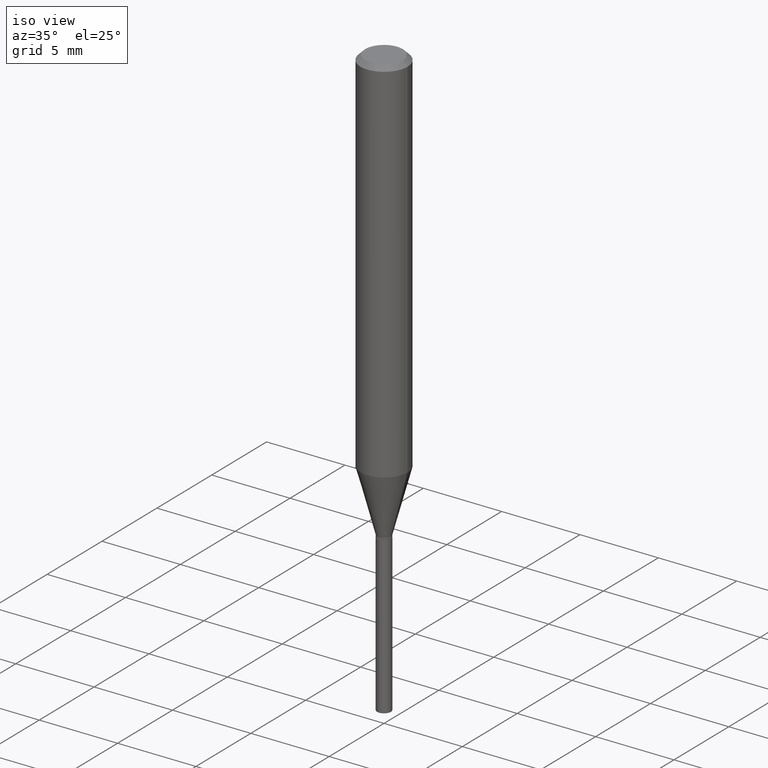
[diagram: clean part render]
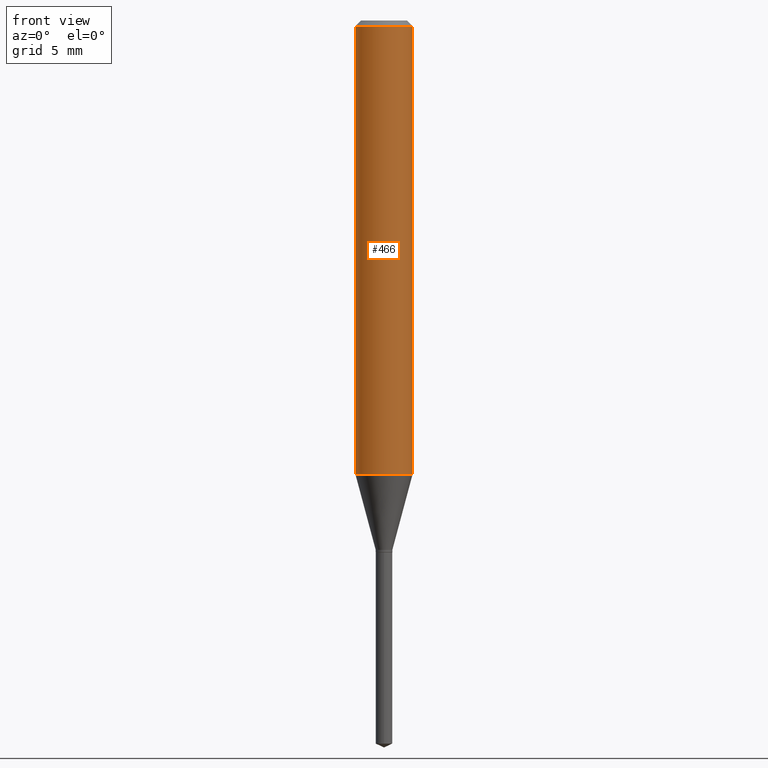
[diagram: tour spotlight — one face highlighted and labeled with its STEP entity id]
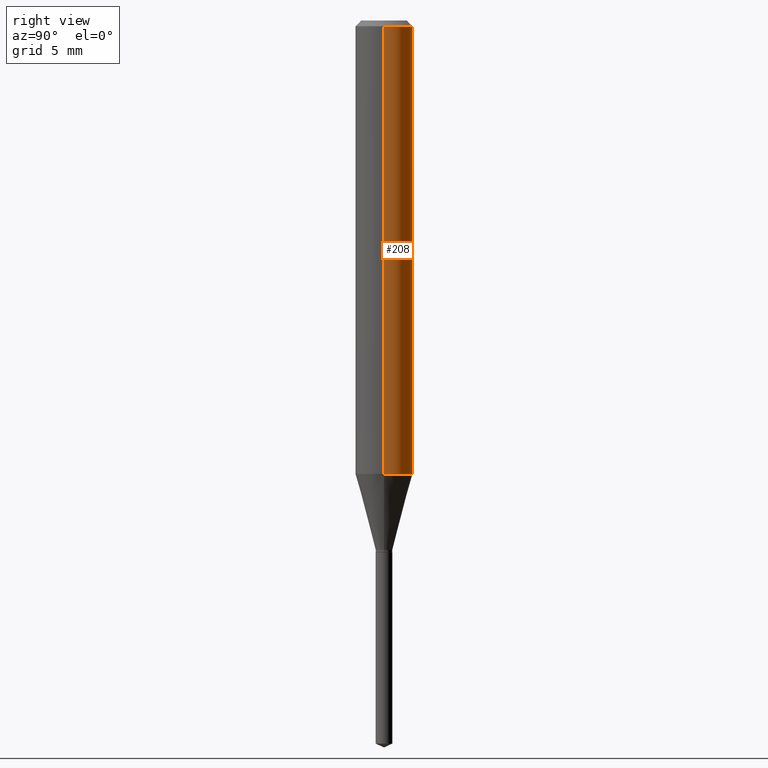
[diagram: tour spotlight — one face highlighted and labeled with its STEP entity id]
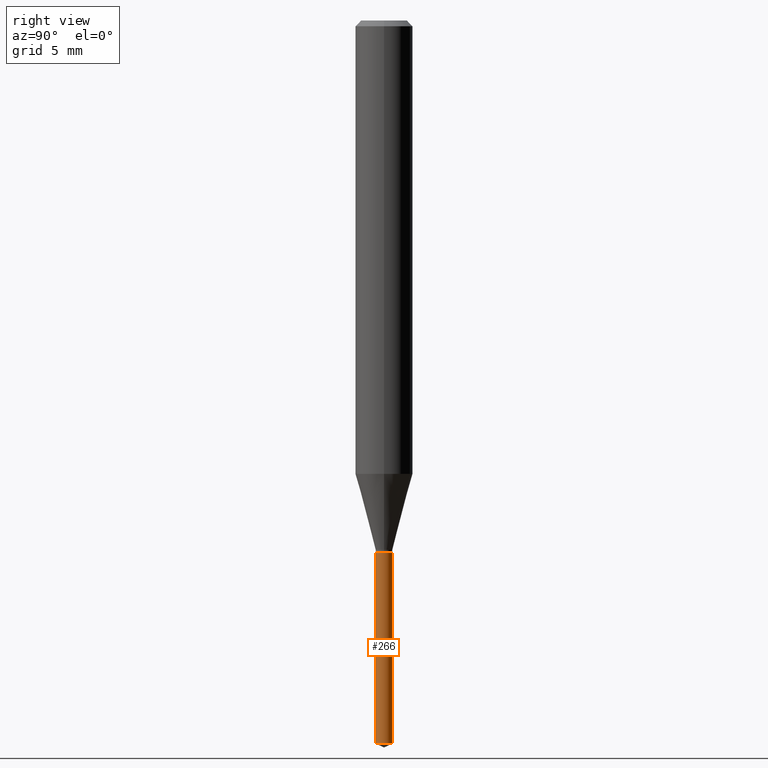
[diagram: tour spotlight — one face highlighted and labeled with its STEP entity id]
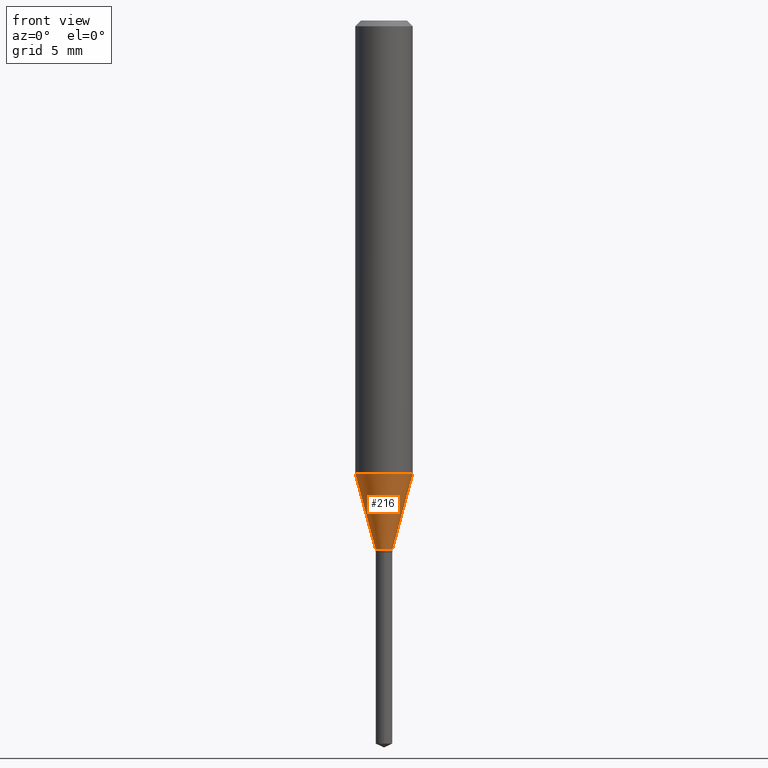
[diagram: tour spotlight — one face highlighted and labeled with its STEP entity id]
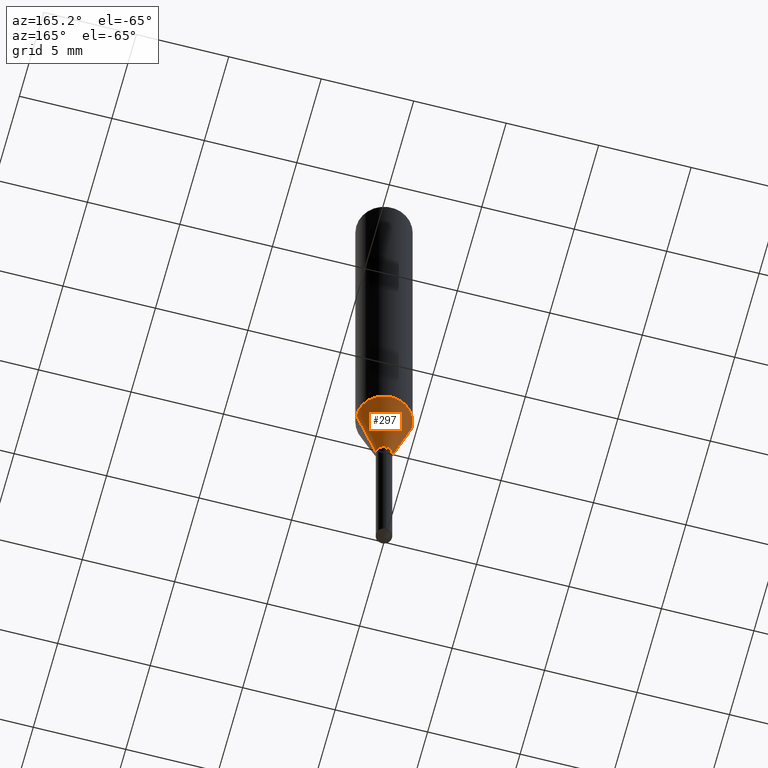
[diagram: tour spotlight — one face highlighted and labeled with its STEP entity id]
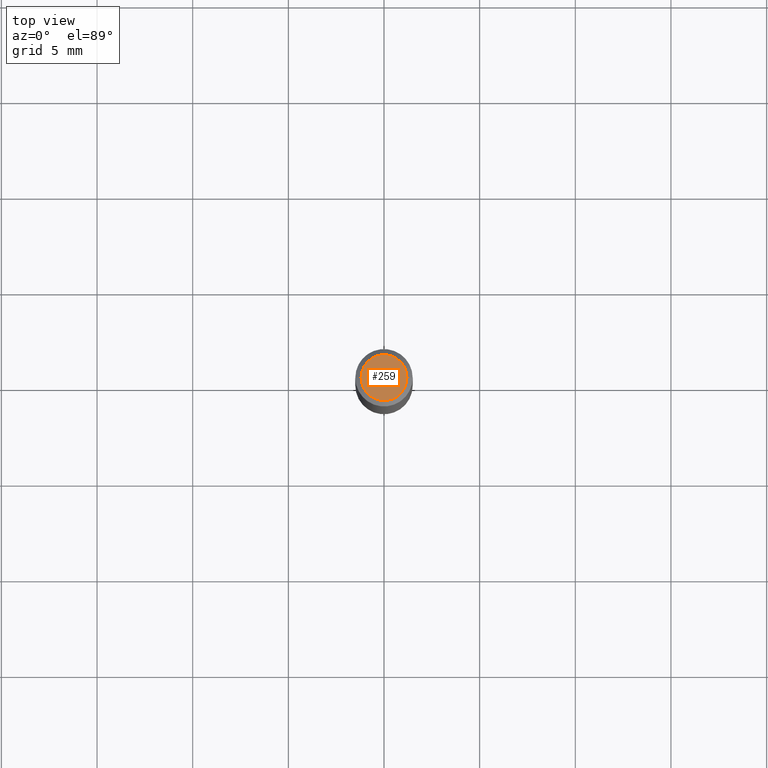
[diagram: tour spotlight — one face highlighted and labeled with its STEP entity id]
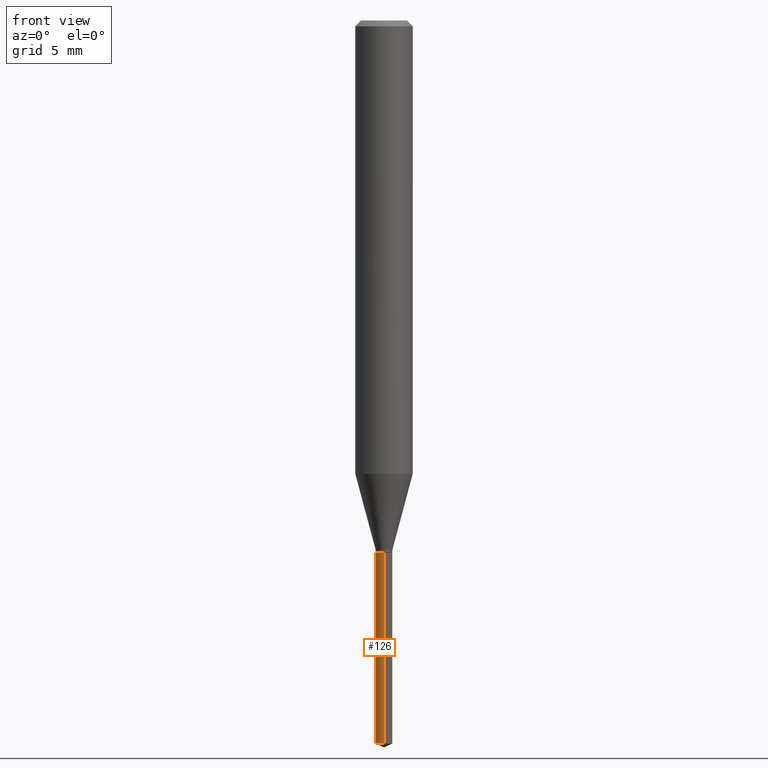
[diagram: tour spotlight — one face highlighted and labeled with its STEP entity id]
A machine part: a face-by-face anatomy tour. The part has 17 B-rep faces; the first image is the clean iso view, then the 7 largest visible faces are spotlighted one at a time (largest first), each with its STEP entity span.

Face 1 — front view, entity #466. In plain terms, the highlighted cylindrical surface (edge-blend (fillet) strip) has radius 1.4999 mm, axis along (-0, 0, 1).
Definition (entity closure, byte-faithful):
#21 = DIRECTION ( 'NONE',  ( -2.445468806185136597E-29, 3.491481338843145583E-15, 1.000000000000000000 ) ) ;
#23 = LINE ( 'NONE', #58, #78 ) ;
#40 = EDGE_CURVE ( 'NONE', #250, #118, #219, .T. ) ;
#58 = CARTESIAN_POINT ( 'NONE',  ( -0.05905000000000005383, 4.195754854663395423E-16, -2.904631170795524694E-30 ) ) ;
#68 = AXIS2_PLACEMENT_3D ( 'NONE', #451, #79, #379 ) ;
#78 = VECTOR ( 'NONE', #181, 39.37007874015748143 ) ;
#79 = DIRECTION ( 'NONE',  ( -2.445468806185136597E-29, 3.491481338843145583E-15, 1.000000000000000000 ) ) ;
#92 = FACE_OUTER_BOUND ( 'NONE', #472, .T. ) ;
#93 = VERTEX_POINT ( 'NONE', #371 ) ;
#97 = EDGE_CURVE ( 'NONE', #118, #132, #373, .T. ) ;
#102 = AXIS2_PLACEMENT_3D ( 'NONE', #393, #356, #227 ) ;
#109 = AXIS2_PLACEMENT_3D ( 'NONE', #469, #21, #278 ) ;
#118 = VERTEX_POINT ( 'NONE', #258 ) ;
#132 = VERTEX_POINT ( 'NONE', #311 ) ;
#181 = DIRECTION ( 'NONE',  ( -2.445468806185136877E-29, 3.491481338843145188E-15, 1.000000000000000000 ) ) ;
#182 = ORIENTED_EDGE ( 'NONE', *, *, #383, .F. ) ;
#219 = CIRCLE ( 'NONE', #68, 0.05905000000000010935 ) ;
#227 = DIRECTION ( 'NONE',  ( 1.000000000000000000, -6.982962677686266711E-15, 4.876176775795935793E-29 ) ) ;
#243 = CYLINDRICAL_SURFACE ( 'NONE', #102, 0.05905000000000005383 ) ;
#244 = ORIENTED_EDGE ( 'NONE', *, *, #97, .T. ) ;
#250 = VERTEX_POINT ( 'NONE', #271 ) ;
#258 = CARTESIAN_POINT ( 'NONE',  ( 0.05905000000000010935, -3.669990553717989210E-15, -0.9330270711628638747 ) ) ;
#271 = CARTESIAN_POINT ( 'NONE',  ( -0.05905000000000010935, -2.838071122134274797E-15, -0.9330270711628638747 ) ) ;
#278 = DIRECTION ( 'NONE',  ( 1.000000000000000000, -6.982962677686266711E-15, 0.000000000000000000 ) ) ;
#296 = DIRECTION ( 'NONE',  ( -2.445468806185136877E-29, 3.491481338843145188E-15, 1.000000000000000000 ) ) ;
#305 = ORIENTED_EDGE ( 'NONE', *, *, #40, .T. ) ;
#311 = CARTESIAN_POINT ( 'NONE',  ( 0.05904999999999999832, -4.535783407291118600E-16, -0.01181000000000006871 ) ) ;
#356 = DIRECTION ( 'NONE',  ( -2.445468806185136597E-29, 3.491481338843145583E-15, 1.000000000000000000 ) ) ;
#366 = ORIENTED_EDGE ( 'NONE', *, *, #367, .F. ) ;
#367 = EDGE_CURVE ( 'NONE', #250, #93, #23, .T. ) ;
#371 = CARTESIAN_POINT ( 'NONE',  ( -0.05904999999999999832, -1.229865015639836319E-15, -0.01181000000000006871 ) ) ;
#373 = LINE ( 'NONE', #481, #476 ) ;
#379 = DIRECTION ( 'NONE',  ( 1.000000000000000000, -6.982962677686267499E-15, 0.000000000000000000 ) ) ;
#383 = EDGE_CURVE ( 'NONE', #93, #132, #468, .T. ) ;
#393 = CARTESIAN_POINT ( 'NONE',  ( 0.000000000000000000, 0.000000000000000000, 0.000000000000000000 ) ) ;
#451 = CARTESIAN_POINT ( 'NONE',  ( 2.281688597855063400E-29, -3.257646607600614684E-15, -0.9330270711628638747 ) ) ;
#466 = ADVANCED_FACE ( 'NONE', ( #92 ), #243, .T. ) ;
#468 = CIRCLE ( 'NONE', #109, 0.05904999999999999832 ) ;
#469 = CARTESIAN_POINT ( 'NONE',  ( 2.888098660104663328E-31, -4.123439461173779030E-17, -0.01181000000000006871 ) ) ;
#472 = EDGE_LOOP ( 'NONE', ( #366, #305, #244, #182 ) ) ;
#476 = VECTOR ( 'NONE', #296, 39.37007874015748143 ) ;
#481 = CARTESIAN_POINT ( 'NONE',  ( 0.05905000000000005383, -4.123439461173744271E-16, 2.879382386107502672E-30 ) ) ;

Face 2 — right view, entity #208. In plain terms, the highlighted cylindrical surface (edge-blend (fillet) strip) has radius 1.4999 mm, axis along (-0, 0, 1).
Definition (entity closure, byte-faithful):
#7 = CYLINDRICAL_SURFACE ( 'NONE', #428, 0.05905000000000005383 ) ;
#23 = LINE ( 'NONE', #58, #78 ) ;
#42 = CARTESIAN_POINT ( 'NONE',  ( 2.888098660104663328E-31, -4.123439461173779030E-17, -0.01181000000000006871 ) ) ;
#49 = AXIS2_PLACEMENT_3D ( 'NONE', #42, #348, #456 ) ;
#54 = DIRECTION ( 'NONE',  ( 1.000000000000000000, -6.982962677686267499E-15, 0.000000000000000000 ) ) ;
#57 = ORIENTED_EDGE ( 'NONE', *, *, #367, .T. ) ;
#58 = CARTESIAN_POINT ( 'NONE',  ( -0.05905000000000005383, 4.195754854663395423E-16, -2.904631170795524694E-30 ) ) ;
#78 = VECTOR ( 'NONE', #181, 39.37007874015748143 ) ;
#80 = DIRECTION ( 'NONE',  ( -2.445468806185136597E-29, 3.491481338843145583E-15, 1.000000000000000000 ) ) ;
#84 = FACE_OUTER_BOUND ( 'NONE', #294, .T. ) ;
#85 = CARTESIAN_POINT ( 'NONE',  ( 0.000000000000000000, 0.000000000000000000, 0.000000000000000000 ) ) ;
#93 = VERTEX_POINT ( 'NONE', #371 ) ;
#97 = EDGE_CURVE ( 'NONE', #118, #132, #373, .T. ) ;
#118 = VERTEX_POINT ( 'NONE', #258 ) ;
#132 = VERTEX_POINT ( 'NONE', #311 ) ;
#180 = EDGE_CURVE ( 'NONE', #132, #93, #211, .T. ) ;
#181 = DIRECTION ( 'NONE',  ( -2.445468806185136877E-29, 3.491481338843145188E-15, 1.000000000000000000 ) ) ;
#208 = ADVANCED_FACE ( 'NONE', ( #84 ), #7, .T. ) ;
#211 = CIRCLE ( 'NONE', #49, 0.05904999999999999832 ) ;
#242 = CARTESIAN_POINT ( 'NONE',  ( 2.281688597855063400E-29, -3.257646607600614684E-15, -0.9330270711628638747 ) ) ;
#250 = VERTEX_POINT ( 'NONE', #271 ) ;
#258 = CARTESIAN_POINT ( 'NONE',  ( 0.05905000000000010935, -3.669990553717989210E-15, -0.9330270711628638747 ) ) ;
#261 = ORIENTED_EDGE ( 'NONE', *, *, #180, .F. ) ;
#271 = CARTESIAN_POINT ( 'NONE',  ( -0.05905000000000010935, -2.838071122134274797E-15, -0.9330270711628638747 ) ) ;
#275 = DIRECTION ( 'NONE',  ( 1.000000000000000000, -6.982962677686266711E-15, 4.876176775795935793E-29 ) ) ;
#294 = EDGE_LOOP ( 'NONE', ( #328, #57, #261, #390 ) ) ;
#296 = DIRECTION ( 'NONE',  ( -2.445468806185136877E-29, 3.491481338843145188E-15, 1.000000000000000000 ) ) ;
#311 = CARTESIAN_POINT ( 'NONE',  ( 0.05904999999999999832, -4.535783407291118600E-16, -0.01181000000000006871 ) ) ;
#328 = ORIENTED_EDGE ( 'NONE', *, *, #411, .T. ) ;
#348 = DIRECTION ( 'NONE',  ( -2.445468806185136597E-29, 3.491481338843145583E-15, 1.000000000000000000 ) ) ;
#367 = EDGE_CURVE ( 'NONE', #250, #93, #23, .T. ) ;
#371 = CARTESIAN_POINT ( 'NONE',  ( -0.05904999999999999832, -1.229865015639836319E-15, -0.01181000000000006871 ) ) ;
#373 = LINE ( 'NONE', #481, #476 ) ;
#390 = ORIENTED_EDGE ( 'NONE', *, *, #97, .F. ) ;
#391 = CIRCLE ( 'NONE', #461, 0.05905000000000010935 ) ;
#411 = EDGE_CURVE ( 'NONE', #118, #250, #391, .T. ) ;
#428 = AXIS2_PLACEMENT_3D ( 'NONE', #85, #80, #275 ) ;
#456 = DIRECTION ( 'NONE',  ( 1.000000000000000000, -6.982962677686266711E-15, 0.000000000000000000 ) ) ;
#461 = AXIS2_PLACEMENT_3D ( 'NONE', #242, #474, #54 ) ;
#474 = DIRECTION ( 'NONE',  ( -2.445468806185136597E-29, 3.491481338843145583E-15, 1.000000000000000000 ) ) ;
#476 = VECTOR ( 'NONE', #296, 39.37007874015748143 ) ;
#481 = CARTESIAN_POINT ( 'NONE',  ( 0.05905000000000005383, -4.123439461173744271E-16, 2.879382386107502672E-30 ) ) ;

Face 3 — right view, entity #266. In plain terms, the highlighted cylindrical surface (edge-blend (fillet) strip) has radius 0.4356 mm, axis along (-0, 0, 1).
Definition (entity closure, byte-faithful):
#26 = CIRCLE ( 'NONE', #140, 0.01714999999999999858 ) ;
#56 = LINE ( 'NONE', #128, #290 ) ;
#87 = DIRECTION ( 'NONE',  ( -6.982962677686266711E-15, -1.000000000000000000, 0.000000000000000000 ) ) ;
#101 = ORIENTED_EDGE ( 'NONE', *, *, #484, .T. ) ;
#108 = CARTESIAN_POINT ( 'NONE',  ( -1.197578099222926869E-16, -0.01715000000000382191, -1.094499999999999806 ) ) ;
#114 = EDGE_CURVE ( 'NONE', #153, #177, #443, .T. ) ;
#127 = DIRECTION ( 'NONE',  ( -6.982962677686266711E-15, -1.000000000000000000, 0.000000000000000000 ) ) ;
#128 = CARTESIAN_POINT ( 'NONE',  ( 1.218580791828839191E-16, 0.01714999999999617525, -1.094499999999999806 ) ) ;
#135 = EDGE_CURVE ( 'NONE', #177, #241, #195, .T. ) ;
#139 = AXIS2_PLACEMENT_3D ( 'NONE', #270, #316, #87 ) ;
#140 = AXIS2_PLACEMENT_3D ( 'NONE', #415, #380, #488 ) ;
#141 = ORIENTED_EDGE ( 'NONE', *, *, #135, .F. ) ;
#153 = VERTEX_POINT ( 'NONE', #464 ) ;
#169 = DIRECTION ( 'NONE',  ( -2.445470214571802396E-29, 3.491479321953280158E-15, 1.000000000000000000 ) ) ;
#177 = VERTEX_POINT ( 'NONE', #460 ) ;
#195 = CIRCLE ( 'NONE', #139, 0.01714999999999999858 ) ;
#238 = CARTESIAN_POINT ( 'NONE',  ( 1.218580791828936073E-16, 0.01714999999999617525, -1.094499999999999806 ) ) ;
#241 = VERTEX_POINT ( 'NONE', #238 ) ;
#246 = ORIENTED_EDGE ( 'NONE', *, *, #340, .T. ) ;
#266 = ADVANCED_FACE ( 'NONE', ( #347 ), #421, .T. ) ;
#270 = CARTESIAN_POINT ( 'NONE',  ( 2.676565608369631794E-29, -3.821426325363822773E-15, -1.094499999999999806 ) ) ;
#286 = CARTESIAN_POINT ( 'NONE',  ( 1.218580791828935333E-16, 0.01714999999999479788, -1.488102823662641683 ) ) ;
#290 = VECTOR ( 'NONE', #169, 39.37007874015748143 ) ;
#313 = VECTOR ( 'NONE', #446, 39.37007874015748143 ) ;
#316 = DIRECTION ( 'NONE',  ( -2.445470214571802116E-29, 3.491479321953280158E-15, 1.000000000000000000 ) ) ;
#340 = EDGE_CURVE ( 'NONE', #397, #241, #56, .T. ) ;
#347 = FACE_OUTER_BOUND ( 'NONE', #400, .T. ) ;
#350 = DIRECTION ( 'NONE',  ( -2.445470214571802116E-29, 3.491479321953280158E-15, 1.000000000000000000 ) ) ;
#380 = DIRECTION ( 'NONE',  ( -2.445470214571802116E-29, 3.491479321953280158E-15, 1.000000000000000000 ) ) ;
#385 = CARTESIAN_POINT ( 'NONE',  ( 2.676565608369631794E-29, -3.821426325363822773E-15, -1.094499999999999806 ) ) ;
#397 = VERTEX_POINT ( 'NONE', #286 ) ;
#400 = EDGE_LOOP ( 'NONE', ( #101, #246, #141, #418 ) ) ;
#414 = AXIS2_PLACEMENT_3D ( 'NONE', #385, #350, #127 ) ;
#415 = CARTESIAN_POINT ( 'NONE',  ( 3.639109590007979236E-29, -5.195682445244359530E-15, -1.488102823662641683 ) ) ;
#418 = ORIENTED_EDGE ( 'NONE', *, *, #114, .F. ) ;
#421 = CYLINDRICAL_SURFACE ( 'NONE', #414, 0.01714999999999999858 ) ;
#443 = LINE ( 'NONE', #108, #313 ) ;
#446 = DIRECTION ( 'NONE',  ( -2.445470214571802396E-29, 3.491479321953280158E-15, 1.000000000000000000 ) ) ;
#460 = CARTESIAN_POINT ( 'NONE',  ( -1.197578099222926869E-16, -0.01715000000000382191, -1.094499999999999806 ) ) ;
#464 = CARTESIAN_POINT ( 'NONE',  ( -1.197578099222830234E-16, -0.01715000000000518887, -1.488102823662641683 ) ) ;
#484 = EDGE_CURVE ( 'NONE', #153, #397, #26, .T. ) ;
#488 = DIRECTION ( 'NONE',  ( -6.982962677686266711E-15, -1.000000000000000000, 0.000000000000000000 ) ) ;

Face 4 — front view, entity #216. In plain terms, the highlighted conical surface has half-angle 15 deg.
Definition (entity closure, byte-faithful):
#9 = VECTOR ( 'NONE', #236, 39.37007874015747433 ) ;
#11 = DIRECTION ( 'NONE',  ( 1.000000000000000000, -6.982962677686279332E-15, 0.000000000000000000 ) ) ;
#12 = CARTESIAN_POINT ( 'NONE',  ( -0.01714999999999999858, -3.689792098432204393E-15, -1.089399999999999924 ) ) ;
#18 = ORIENTED_EDGE ( 'NONE', *, *, #30, .F. ) ;
#30 = EDGE_CURVE ( 'NONE', #283, #250, #184, .T. ) ;
#33 = DIRECTION ( 'NONE',  ( 1.000000000000000000, -6.982962677686279332E-15, 0.000000000000000000 ) ) ;
#37 = CARTESIAN_POINT ( 'NONE',  ( 2.664093717458087237E-29, -3.803619770535721859E-15, -1.089399999999999924 ) ) ;
#40 = EDGE_CURVE ( 'NONE', #250, #118, #219, .T. ) ;
#52 = VERTEX_POINT ( 'NONE', #147 ) ;
#68 = AXIS2_PLACEMENT_3D ( 'NONE', #451, #79, #379 ) ;
#72 = ORIENTED_EDGE ( 'NONE', *, *, #490, .T. ) ;
#79 = DIRECTION ( 'NONE',  ( -2.445468806185136597E-29, 3.491481338843145583E-15, 1.000000000000000000 ) ) ;
#81 = FACE_OUTER_BOUND ( 'NONE', #408, .T. ) ;
#83 = CONICAL_SURFACE ( 'NONE', #343, 0.01714999999999999858, 0.2617993877991500740 ) ;
#89 = VECTOR ( 'NONE', #336, 39.37007874015747433 ) ;
#118 = VERTEX_POINT ( 'NONE', #258 ) ;
#147 = CARTESIAN_POINT ( 'NONE',  ( 0.01714999999999999858, -3.923377580458041737E-15, -1.089399999999999924 ) ) ;
#162 = DIRECTION ( 'NONE',  ( -2.445468806185136597E-29, 3.491481338843145583E-15, 1.000000000000000000 ) ) ;
#163 = ORIENTED_EDGE ( 'NONE', *, *, #237, .T. ) ;
#184 = LINE ( 'NONE', #268, #89 ) ;
#199 = CARTESIAN_POINT ( 'NONE',  ( 2.664093717458087237E-29, -3.803619770535721859E-15, -1.089399999999999924 ) ) ;
#201 = CARTESIAN_POINT ( 'NONE',  ( 0.01714999999999999858, -3.923377580458041737E-15, -1.089399999999999924 ) ) ;
#204 = CIRCLE ( 'NONE', #345, 0.01714999999999999858 ) ;
#216 = ADVANCED_FACE ( 'NONE', ( #81 ), #83, .T. ) ;
#219 = CIRCLE ( 'NONE', #68, 0.05905000000000010935 ) ;
#236 = DIRECTION ( 'NONE',  ( 0.2588190451025213501, 1.565188264969621968E-15, 0.9659258262890682012 ) ) ;
#237 = EDGE_CURVE ( 'NONE', #52, #118, #318, .T. ) ;
#250 = VERTEX_POINT ( 'NONE', #271 ) ;
#258 = CARTESIAN_POINT ( 'NONE',  ( 0.05905000000000010935, -3.669990553717989210E-15, -0.9330270711628638747 ) ) ;
#268 = CARTESIAN_POINT ( 'NONE',  ( -0.01714999999999999858, -3.681761691352864687E-15, -1.089399999999999924 ) ) ;
#271 = CARTESIAN_POINT ( 'NONE',  ( -0.05905000000000010935, -2.838071122134274797E-15, -0.9330270711628638747 ) ) ;
#283 = VERTEX_POINT ( 'NONE', #12 ) ;
#298 = DIRECTION ( 'NONE',  ( -2.445468806185136597E-29, 3.491481338843145583E-15, 1.000000000000000000 ) ) ;
#318 = LINE ( 'NONE', #201, #9 ) ;
#336 = DIRECTION ( 'NONE',  ( -0.2588190451025213501, 5.211531920934551042E-15, 0.9659258262890682012 ) ) ;
#343 = AXIS2_PLACEMENT_3D ( 'NONE', #199, #162, #11 ) ;
#345 = AXIS2_PLACEMENT_3D ( 'NONE', #37, #298, #33 ) ;
#379 = DIRECTION ( 'NONE',  ( 1.000000000000000000, -6.982962677686267499E-15, 0.000000000000000000 ) ) ;
#408 = EDGE_LOOP ( 'NONE', ( #18, #72, #163, #475 ) ) ;
#451 = CARTESIAN_POINT ( 'NONE',  ( 2.281688597855063400E-29, -3.257646607600614684E-15, -0.9330270711628638747 ) ) ;
#475 = ORIENTED_EDGE ( 'NONE', *, *, #40, .F. ) ;
#490 = EDGE_CURVE ( 'NONE', #283, #52, #204, .T. ) ;

Face 5 — auxiliary view, entity #297. In plain terms, the highlighted conical surface has half-angle 15 deg.
Definition (entity closure, byte-faithful):
#3 = CONICAL_SURFACE ( 'NONE', #69, 0.01714999999999999858, 0.2617993877991500740 ) ;
#9 = VECTOR ( 'NONE', #236, 39.37007874015747433 ) ;
#12 = CARTESIAN_POINT ( 'NONE',  ( -0.01714999999999999858, -3.689792098432204393E-15, -1.089399999999999924 ) ) ;
#30 = EDGE_CURVE ( 'NONE', #283, #250, #184, .T. ) ;
#31 = DIRECTION ( 'NONE',  ( -2.445468806185136597E-29, 3.491481338843145583E-15, 1.000000000000000000 ) ) ;
#52 = VERTEX_POINT ( 'NONE', #147 ) ;
#54 = DIRECTION ( 'NONE',  ( 1.000000000000000000, -6.982962677686267499E-15, 0.000000000000000000 ) ) ;
#69 = AXIS2_PLACEMENT_3D ( 'NONE', #176, #471, #104 ) ;
#89 = VECTOR ( 'NONE', #336, 39.37007874015747433 ) ;
#104 = DIRECTION ( 'NONE',  ( 1.000000000000000000, -6.982962677686279332E-15, 0.000000000000000000 ) ) ;
#118 = VERTEX_POINT ( 'NONE', #258 ) ;
#144 = ORIENTED_EDGE ( 'NONE', *, *, #237, .F. ) ;
#147 = CARTESIAN_POINT ( 'NONE',  ( 0.01714999999999999858, -3.923377580458041737E-15, -1.089399999999999924 ) ) ;
#165 = CIRCLE ( 'NONE', #445, 0.01714999999999999858 ) ;
#176 = CARTESIAN_POINT ( 'NONE',  ( 2.664093717458087237E-29, -3.803619770535721859E-15, -1.089399999999999924 ) ) ;
#184 = LINE ( 'NONE', #268, #89 ) ;
#201 = CARTESIAN_POINT ( 'NONE',  ( 0.01714999999999999858, -3.923377580458041737E-15, -1.089399999999999924 ) ) ;
#236 = DIRECTION ( 'NONE',  ( 0.2588190451025213501, 1.565188264969621968E-15, 0.9659258262890682012 ) ) ;
#237 = EDGE_CURVE ( 'NONE', #52, #118, #318, .T. ) ;
#242 = CARTESIAN_POINT ( 'NONE',  ( 2.281688597855063400E-29, -3.257646607600614684E-15, -0.9330270711628638747 ) ) ;
#250 = VERTEX_POINT ( 'NONE', #271 ) ;
#258 = CARTESIAN_POINT ( 'NONE',  ( 0.05905000000000010935, -3.669990553717989210E-15, -0.9330270711628638747 ) ) ;
#268 = CARTESIAN_POINT ( 'NONE',  ( -0.01714999999999999858, -3.681761691352864687E-15, -1.089399999999999924 ) ) ;
#269 = ORIENTED_EDGE ( 'NONE', *, *, #473, .T. ) ;
#271 = CARTESIAN_POINT ( 'NONE',  ( -0.05905000000000010935, -2.838071122134274797E-15, -0.9330270711628638747 ) ) ;
#283 = VERTEX_POINT ( 'NONE', #12 ) ;
#297 = ADVANCED_FACE ( 'NONE', ( #438 ), #3, .T. ) ;
#318 = LINE ( 'NONE', #201, #9 ) ;
#336 = DIRECTION ( 'NONE',  ( -0.2588190451025213501, 5.211531920934551042E-15, 0.9659258262890682012 ) ) ;
#370 = DIRECTION ( 'NONE',  ( 1.000000000000000000, -6.982962677686279332E-15, 0.000000000000000000 ) ) ;
#391 = CIRCLE ( 'NONE', #461, 0.05905000000000010935 ) ;
#394 = EDGE_LOOP ( 'NONE', ( #269, #430, #441, #144 ) ) ;
#411 = EDGE_CURVE ( 'NONE', #118, #250, #391, .T. ) ;
#430 = ORIENTED_EDGE ( 'NONE', *, *, #30, .T. ) ;
#438 = FACE_OUTER_BOUND ( 'NONE', #394, .T. ) ;
#441 = ORIENTED_EDGE ( 'NONE', *, *, #411, .F. ) ;
#445 = AXIS2_PLACEMENT_3D ( 'NONE', #480, #31, #370 ) ;
#461 = AXIS2_PLACEMENT_3D ( 'NONE', #242, #474, #54 ) ;
#471 = DIRECTION ( 'NONE',  ( -2.445468806185136597E-29, 3.491481338843145583E-15, 1.000000000000000000 ) ) ;
#473 = EDGE_CURVE ( 'NONE', #52, #283, #165, .T. ) ;
#474 = DIRECTION ( 'NONE',  ( -2.445468806185136597E-29, 3.491481338843145583E-15, 1.000000000000000000 ) ) ;
#480 = CARTESIAN_POINT ( 'NONE',  ( 2.664093717458087237E-29, -3.803619770535721859E-15, -1.089399999999999924 ) ) ;

Face 6 — top view, entity #259. In plain terms, the highlighted planar face has unit normal (0, -0, -1).
Definition (entity closure, byte-faithful):
#1 = EDGE_LOOP ( 'NONE', ( #55, #355 ) ) ;
#5 = FACE_OUTER_BOUND ( 'NONE', #1, .T. ) ;
#47 = DIRECTION ( 'NONE',  ( 2.438088387897960049E-29, -3.491481338843145188E-15, -1.000000000000000000 ) ) ;
#55 = ORIENTED_EDGE ( 'NONE', *, *, #437, .T. ) ;
#95 = CARTESIAN_POINT ( 'NONE',  ( 0.04724000000000000421, -3.852183633974369345E-16, -3.380025165621689721E-19 ) ) ;
#98 = CARTESIAN_POINT ( 'NONE',  ( 8.265746106709734507E-48, -1.180129479067563789E-33, -3.380025165646692144E-19 ) ) ;
#100 = CIRCLE ( 'NONE', #257, 0.04724000000000000421 ) ;
#123 = CARTESIAN_POINT ( 'NONE',  ( 8.265746106709734507E-48, -1.180129479067563789E-33, -3.380025165646692144E-19 ) ) ;
#156 = EDGE_CURVE ( 'NONE', #292, #325, #203, .T. ) ;
#157 = DIRECTION ( 'NONE',  ( -2.445468806185136597E-29, 3.491481338843145583E-15, 1.000000000000000000 ) ) ;
#167 = PLANE ( 'NONE',  #288 ) ;
#198 = DIRECTION ( 'NONE',  ( -1.000000000000000000, 6.982962677686265922E-15, -4.876176775795935793E-29 ) ) ;
#203 = CIRCLE ( 'NONE', #406, 0.04724000000000000421 ) ;
#212 = CARTESIAN_POINT ( 'NONE',  ( -0.04724000000000000421, 3.504923541997677355E-16, -3.380025165670481712E-19 ) ) ;
#257 = AXIS2_PLACEMENT_3D ( 'NONE', #98, #354, #465 ) ;
#259 = ADVANCED_FACE ( 'NONE', ( #5 ), #167, .F. ) ;
#288 = AXIS2_PLACEMENT_3D ( 'NONE', #387, #47, #198 ) ;
#292 = VERTEX_POINT ( 'NONE', #95 ) ;
#312 = DIRECTION ( 'NONE',  ( 1.000000000000000000, -6.982962677686266711E-15, 4.876185090822587894E-29 ) ) ;
#325 = VERTEX_POINT ( 'NONE', #212 ) ;
#354 = DIRECTION ( 'NONE',  ( -2.445468806185136597E-29, 3.491481338843145583E-15, 1.000000000000000000 ) ) ;
#355 = ORIENTED_EDGE ( 'NONE', *, *, #156, .T. ) ;
#387 = CARTESIAN_POINT ( 'NONE',  ( 4.132873053354867254E-48, -5.900647395337818946E-34, -1.690012582823346072E-19 ) ) ;
#406 = AXIS2_PLACEMENT_3D ( 'NONE', #123, #157, #312 ) ;
#437 = EDGE_CURVE ( 'NONE', #325, #292, #100, .T. ) ;
#465 = DIRECTION ( 'NONE',  ( 1.000000000000000000, -6.982962677686266711E-15, 4.876185090822587894E-29 ) ) ;

Face 7 — front view, entity #126. In plain terms, the highlighted cylindrical surface (edge-blend (fillet) strip) has radius 0.4356 mm, axis along (-0, 0, 1).
Definition (entity closure, byte-faithful):
#2 = AXIS2_PLACEMENT_3D ( 'NONE', #422, #232, #120 ) ;
#34 = FACE_OUTER_BOUND ( 'NONE', #174, .T. ) ;
#56 = LINE ( 'NONE', #128, #290 ) ;
#74 = CARTESIAN_POINT ( 'NONE',  ( 2.676565608369631794E-29, -3.821426325363822773E-15, -1.094499999999999806 ) ) ;
#90 = DIRECTION ( 'NONE',  ( -2.445470214571802116E-29, 3.491479321953280158E-15, 1.000000000000000000 ) ) ;
#108 = CARTESIAN_POINT ( 'NONE',  ( -1.197578099222926869E-16, -0.01715000000000382191, -1.094499999999999806 ) ) ;
#114 = EDGE_CURVE ( 'NONE', #153, #177, #443, .T. ) ;
#115 = ORIENTED_EDGE ( 'NONE', *, *, #114, .T. ) ;
#116 = CIRCLE ( 'NONE', #2, 0.01714999999999999858 ) ;
#120 = DIRECTION ( 'NONE',  ( -6.982962677686266711E-15, -1.000000000000000000, 0.000000000000000000 ) ) ;
#126 = ADVANCED_FACE ( 'NONE', ( #34 ), #410, .T. ) ;
#128 = CARTESIAN_POINT ( 'NONE',  ( 1.218580791828839191E-16, 0.01714999999999617525, -1.094499999999999806 ) ) ;
#130 = AXIS2_PLACEMENT_3D ( 'NONE', #427, #90, #360 ) ;
#146 = ORIENTED_EDGE ( 'NONE', *, *, #340, .F. ) ;
#153 = VERTEX_POINT ( 'NONE', #464 ) ;
#169 = DIRECTION ( 'NONE',  ( -2.445470214571802396E-29, 3.491479321953280158E-15, 1.000000000000000000 ) ) ;
#174 = EDGE_LOOP ( 'NONE', ( #146, #210, #115, #433 ) ) ;
#177 = VERTEX_POINT ( 'NONE', #460 ) ;
#210 = ORIENTED_EDGE ( 'NONE', *, *, #231, .T. ) ;
#226 = DIRECTION ( 'NONE',  ( -2.445470214571802116E-29, 3.491479321953280158E-15, 1.000000000000000000 ) ) ;
#231 = EDGE_CURVE ( 'NONE', #397, #153, #116, .T. ) ;
#232 = DIRECTION ( 'NONE',  ( -2.445470214571802116E-29, 3.491479321953280158E-15, 1.000000000000000000 ) ) ;
#238 = CARTESIAN_POINT ( 'NONE',  ( 1.218580791828936073E-16, 0.01714999999999617525, -1.094499999999999806 ) ) ;
#241 = VERTEX_POINT ( 'NONE', #238 ) ;
#286 = CARTESIAN_POINT ( 'NONE',  ( 1.218580791828935333E-16, 0.01714999999999479788, -1.488102823662641683 ) ) ;
#290 = VECTOR ( 'NONE', #169, 39.37007874015748143 ) ;
#313 = VECTOR ( 'NONE', #446, 39.37007874015748143 ) ;
#340 = EDGE_CURVE ( 'NONE', #397, #241, #56, .T. ) ;
#360 = DIRECTION ( 'NONE',  ( -6.982962677686266711E-15, -1.000000000000000000, 0.000000000000000000 ) ) ;
#375 = DIRECTION ( 'NONE',  ( -6.982962677686266711E-15, -1.000000000000000000, 0.000000000000000000 ) ) ;
#395 = EDGE_CURVE ( 'NONE', #241, #177, #398, .T. ) ;
#397 = VERTEX_POINT ( 'NONE', #286 ) ;
#398 = CIRCLE ( 'NONE', #130, 0.01714999999999999858 ) ;
#410 = CYLINDRICAL_SURFACE ( 'NONE', #459, 0.01714999999999999858 ) ;
#422 = CARTESIAN_POINT ( 'NONE',  ( 3.639109590007979236E-29, -5.195682445244359530E-15, -1.488102823662641683 ) ) ;
#427 = CARTESIAN_POINT ( 'NONE',  ( 2.676565608369631794E-29, -3.821426325363822773E-15, -1.094499999999999806 ) ) ;
#433 = ORIENTED_EDGE ( 'NONE', *, *, #395, .F. ) ;
#443 = LINE ( 'NONE', #108, #313 ) ;
#446 = DIRECTION ( 'NONE',  ( -2.445470214571802396E-29, 3.491479321953280158E-15, 1.000000000000000000 ) ) ;
#459 = AXIS2_PLACEMENT_3D ( 'NONE', #74, #226, #375 ) ;
#460 = CARTESIAN_POINT ( 'NONE',  ( -1.197578099222926869E-16, -0.01715000000000382191, -1.094499999999999806 ) ) ;
#464 = CARTESIAN_POINT ( 'NONE',  ( -1.197578099222830234E-16, -0.01715000000000518887, -1.488102823662641683 ) ) ;